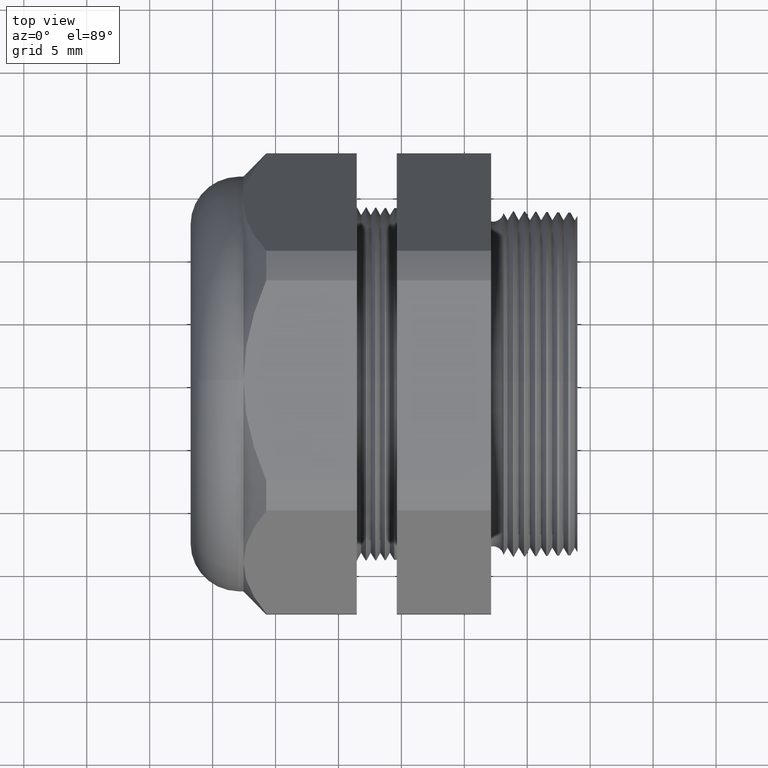
[diagram: clean part render]
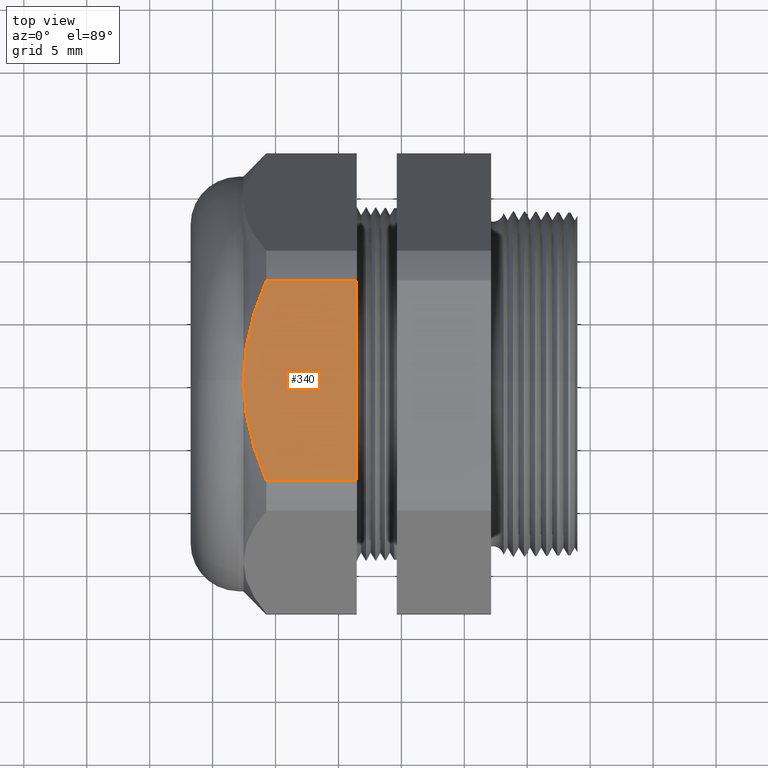
[diagram: same view with one face highlighted and labeled with its STEP entity id]
A machine part, top view. The second image highlights one B-rep face of the part: STEP entity #340.
In plain terms, the highlighted planar face has unit normal (0, 0, 1).
Its self-contained STEP definition (entity closure, byte-faithful):
#318 = ORIENTED_EDGE ( 'NONE', *, *, #319, .T. ) ;
#319 = EDGE_CURVE ( 'NONE', #345, #3475, #1544, .T. ) ;
#320 = ORIENTED_EDGE ( 'NONE', *, *, #321, .T. ) ;
#321 = EDGE_CURVE ( 'NONE', #3475, #334, #1543, .T. ) ;
#322 = ORIENTED_EDGE ( 'NONE', *, *, #332, .F. ) ;
#323 = ORIENTED_EDGE ( 'NONE', *, *, #324, .F. ) ;
#324 = EDGE_CURVE ( 'NONE', #344, #333, #1532, .T. ) ;
#332 = EDGE_CURVE ( 'NONE', #333, #334, #1572, .T. ) ;
#333 = VERTEX_POINT ( 'NONE', #1568 ) ;
#334 = VERTEX_POINT ( 'NONE', #1567 ) ;
#340 = ADVANCED_FACE ( 'NONE', ( #1556 ), #1555, .T. ) ;
#341 = EDGE_LOOP ( 'NONE', ( #342, #318, #320, #322, #323 ) ) ;
#342 = ORIENTED_EDGE ( 'NONE', *, *, #343, .T. ) ;
#343 = EDGE_CURVE ( 'NONE', #344, #345, #1550, .T. ) ;
#344 = VERTEX_POINT ( 'NONE', #1604 ) ;
#345 = VERTEX_POINT ( 'NONE', #1603 ) ;
#1521 = VECTOR ( 'NONE', #1530, 39.37007874015748100 ) ;
#1522 = CARTESIAN_POINT ( 'NONE',  ( -1.013145669291338300, -0.3131489262315937900, 0.6499999999999999100 ) ) ;
#1523 = CARTESIAN_POINT ( 'NONE',  ( -1.023853258750206700, -0.2884784734615908300, 0.6499999999999999100 ) ) ;
#1524 = CARTESIAN_POINT ( 'NONE',  ( -1.033769659977806300, -0.2632641016272524400, 0.6500000000000000200 ) ) ;
#1525 = CARTESIAN_POINT ( 'NONE',  ( -1.051388897147413000, -0.2119448594679246600, 0.6499999999999999100 ) ) ;
#1526 = CARTESIAN_POINT ( 'NONE',  ( -1.059012774614852100, -0.1860728161737497100, 0.6500000000000000200 ) ) ;
#1527 = CARTESIAN_POINT ( 'NONE',  ( -1.077736925318554500, -0.1077136765109594500, 0.6499999999999995800 ) ) ;
#1528 = CARTESIAN_POINT ( 'NONE',  ( -1.084645669291337800, -0.05447567936366846200, 0.6499999999999994700 ) ) ;
#1529 = CARTESIAN_POINT ( 'NONE',  ( -1.084645669291338200, 0.0000000000000000000, 0.6499999999999999100 ) ) ;
#1530 = DIRECTION ( 'NONE',  ( 0.0000000000000000000, -1.000000000000000000, 0.0000000000000000000 ) ) ;
#1531 = CARTESIAN_POINT ( 'NONE',  ( -0.7303149606299208500, 0.5550000000000000500, 0.6499999999999999100 ) ) ;
#1532 = LINE ( 'NONE', #1531, #1521 ) ;
#1533 = CARTESIAN_POINT ( 'NONE',  ( -1.084645669291338200, 0.0000000000000000000, 0.6499999999999999100 ) ) ;
#1534 = CARTESIAN_POINT ( 'NONE',  ( -1.084645669291338400, 0.02720867923416893700, 0.6499999999999999100 ) ) ;
#1535 = CARTESIAN_POINT ( 'NONE',  ( -1.082922968131963000, 0.05424748414116260100, 0.6500000000000001300 ) ) ;
#1536 = CARTESIAN_POINT ( 'NONE',  ( -1.076334391925264400, 0.1075827506458431200, 0.6500000000000000200 ) ) ;
#1537 = CARTESIAN_POINT ( 'NONE',  ( -1.071470867480276900, 0.1339536167969822300, 0.6500000000000001300 ) ) ;
#1538 = CARTESIAN_POINT ( 'NONE',  ( -1.058984633822156500, 0.1861735441654885100, 0.6500000000000000200 ) ) ;
#1539 = CARTESIAN_POINT ( 'NONE',  ( -1.051363564042517200, 0.2120229154253347200, 0.6499999999999998000 ) ) ;
#1540 = CARTESIAN_POINT ( 'NONE',  ( -1.033764154437382600, 0.2632758613625143500, 0.6499999999999999100 ) ) ;
#1541 = CARTESIAN_POINT ( 'NONE',  ( -1.023845930118102000, 0.2884953587440264300, 0.6499999999999999100 ) ) ;
#1542 = CARTESIAN_POINT ( 'NONE',  ( -1.013145669291338300, 0.3131489262315937900, 0.6499999999999999100 ) ) ;
#1543 = B_SPLINE_CURVE_WITH_KNOTS ( 'NONE', 3,
 ( #1529, #1528, #1527, #1526, #1525, #1524, #1523, #1522 ),
 .UNSPECIFIED., .F., .F.,
 ( 4, 2, 2, 4 ),
 ( 0.02058130614178223900, 0.02465197266607500900, 0.02668730592822139700, 0.02872263919036778200 ),
 .UNSPECIFIED. ) ;
#1544 = B_SPLINE_CURVE_WITH_KNOTS ( 'NONE', 3,
 ( #1542, #1541, #1540, #1539, #1538, #1537, #1536, #1535, #1534, #1533 ),
 .UNSPECIFIED., .F., .F.,
 ( 4, 2, 2, 2, 4 ),
 ( 0.01244868908973178300, 0.01448184335274439700, 0.01651499761575701100, 0.01854815187876962500, 0.02058130614178223900 ),
 .UNSPECIFIED. ) ;
#1549 = CARTESIAN_POINT ( 'NONE',  ( -0.03999999999999998000, 0.3131489262315937900, 0.6499999999999999100 ) ) ;
#1550 = LINE ( 'NONE', #1549, #1606 ) ;
#1551 = DIRECTION ( 'NONE',  ( 1.000000000000000000, 0.0000000000000000000, 0.0000000000000000000 ) ) ;
#1552 = DIRECTION ( 'NONE',  ( 0.0000000000000000000, 0.0000000000000000000, 1.000000000000000000 ) ) ;
#1553 = CARTESIAN_POINT ( 'NONE',  ( -0.03999999999999998000, -0.3131489262315937900, 0.6499999999999999100 ) ) ;
#1554 = AXIS2_PLACEMENT_3D ( 'NONE', #1553, #1552, #1551 ) ;
#1555 = PLANE ( 'NONE',  #1554 ) ;
#1556 = FACE_OUTER_BOUND ( 'NONE', #341, .T. ) ;
#1567 = CARTESIAN_POINT ( 'NONE',  ( -1.013145669291338300, -0.3131489262315937900, 0.6499999999999999100 ) ) ;
#1568 = CARTESIAN_POINT ( 'NONE',  ( -0.7303149606299208500, -0.3131489262315937400, 0.6500000000000000200 ) ) ;
#1569 = DIRECTION ( 'NONE',  ( -1.000000000000000000, 0.0000000000000000000, 0.0000000000000000000 ) ) ;
#1570 = VECTOR ( 'NONE', #1569, 39.37007874015748100 ) ;
#1571 = CARTESIAN_POINT ( 'NONE',  ( -0.03999999999999998000, -0.3131489262315937400, 0.6500000000000000200 ) ) ;
#1572 = LINE ( 'NONE', #1571, #1570 ) ;
#1603 = CARTESIAN_POINT ( 'NONE',  ( -1.013145669291338300, 0.3131489262315937900, 0.6499999999999999100 ) ) ;
#1604 = CARTESIAN_POINT ( 'NONE',  ( -0.7303149606299208500, 0.3131489262315937900, 0.6499999999999999100 ) ) ;
#1605 = DIRECTION ( 'NONE',  ( -1.000000000000000000, 0.0000000000000000000, 0.0000000000000000000 ) ) ;
#1606 = VECTOR ( 'NONE', #1605, 39.37007874015748100 ) ;
#2972 = CARTESIAN_POINT ( 'NONE',  ( -1.084645669291338200, 0.0000000000000000000, 0.6499999999999999100 ) ) ;
#3475 = VERTEX_POINT ( 'NONE', #2972 ) ;